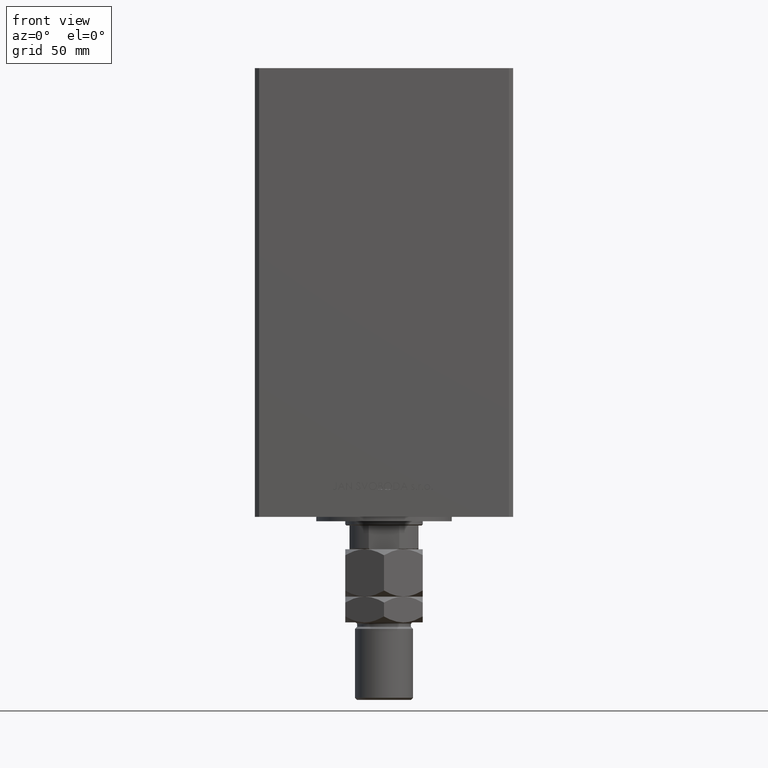
[diagram: clean part render]
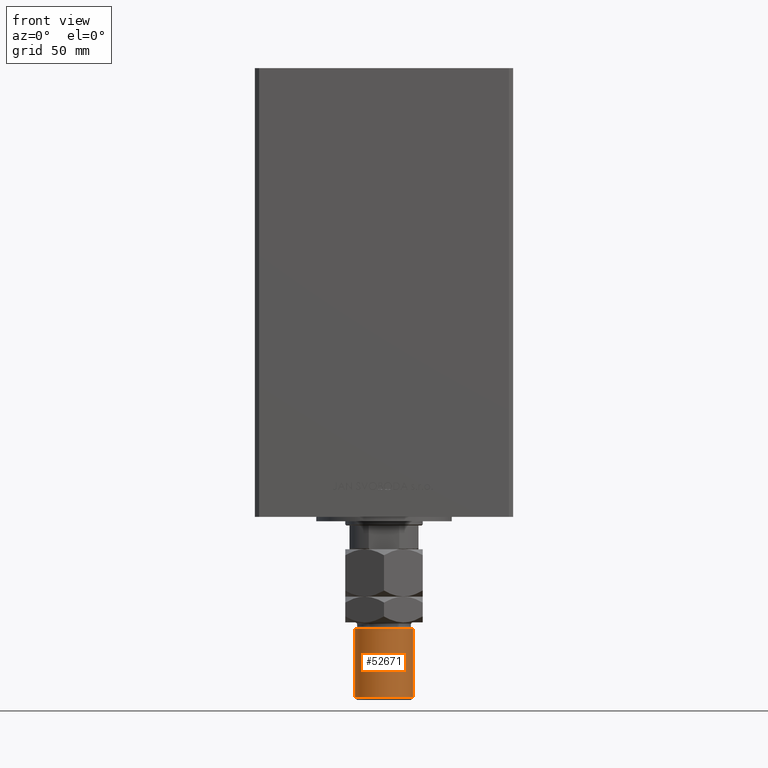
[diagram: same view with one face highlighted and labeled with its STEP entity id]
A machine part, front view. The second image highlights one B-rep face of the part: STEP entity #52671.
In plain terms, the highlighted cylindrical surface (edge-blend (fillet) strip) has radius 13.5 mm, axis along (0, -0, 1).
Its self-contained STEP definition (entity closure, byte-faithful):
#2039 = AXIS2_PLACEMENT_3D ( 'NONE', #21388, #28468, #50227 ) ;
#2381 = EDGE_CURVE ( 'NONE', #33560, #29367, #23360, .T. ) ;
#6570 = EDGE_CURVE ( 'NONE', #21444, #11635, #41244, .T. ) ;
#9335 = ORIENTED_EDGE ( 'NONE', *, *, #40471, .T. ) ;
#9793 = CARTESIAN_POINT ( 'NONE',  ( 0.000000000000000000, 0.000000000000000000, 37.00000000000000000 ) ) ;
#11608 = DIRECTION ( 'NONE',  ( -0.000000000000000000, -0.000000000000000000, -1.000000000000000000 ) ) ;
#11635 = VERTEX_POINT ( 'NONE', #26665 ) ;
#13749 = EDGE_LOOP ( 'NONE', ( #23613, #9335, #43554, #37639 ) ) ;
#19000 = CARTESIAN_POINT ( 'NONE',  ( 13.50000000000000000, 1.653273178848926867E-15, 70.00000000000000000 ) ) ;
#21388 = CARTESIAN_POINT ( 'NONE',  ( 0.000000000000000000, 0.000000000000000000, 70.00000000000000000 ) ) ;
#21444 = VERTEX_POINT ( 'NONE', #51213 ) ;
#22073 = CIRCLE ( 'NONE', #52470, 13.50000000000000000 ) ;
#23360 = LINE ( 'NONE', #19000, #30574 ) ;
#23574 = DIRECTION ( 'NONE',  ( 0.000000000000000000, 0.000000000000000000, -1.000000000000000000 ) ) ;
#23613 = ORIENTED_EDGE ( 'NONE', *, *, #2381, .F. ) ;
#24925 = CARTESIAN_POINT ( 'NONE',  ( -13.50000000000000000, 0.000000000000000000, 70.00000000000000000 ) ) ;
#26383 = DIRECTION ( 'NONE',  ( -0.000000000000000000, -0.000000000000000000, 1.000000000000000000 ) ) ;
#26665 = CARTESIAN_POINT ( 'NONE',  ( -13.50000000000000000, 0.000000000000000000, 37.00000000000000000 ) ) ;
#28468 = DIRECTION ( 'NONE',  ( -0.000000000000000000, -0.000000000000000000, -1.000000000000000000 ) ) ;
#29367 = VERTEX_POINT ( 'NONE', #32458 ) ;
#30574 = VECTOR ( 'NONE', #35339, 1000.000000000000000 ) ;
#32236 = CIRCLE ( 'NONE', #33989, 13.50000000000000000 ) ;
#32458 = CARTESIAN_POINT ( 'NONE',  ( 13.50000000000000000, 1.653273178848926867E-15, 37.00000000000000000 ) ) ;
#32830 = FACE_OUTER_BOUND ( 'NONE', #13749, .T. ) ;
#33560 = VERTEX_POINT ( 'NONE', #49191 ) ;
#33989 = AXIS2_PLACEMENT_3D ( 'NONE', #9793, #26383, #40237 ) ;
#34344 = EDGE_CURVE ( 'NONE', #11635, #29367, #32236, .T. ) ;
#35339 = DIRECTION ( 'NONE',  ( -0.000000000000000000, -0.000000000000000000, -1.000000000000000000 ) ) ;
#37639 = ORIENTED_EDGE ( 'NONE', *, *, #34344, .T. ) ;
#40237 = DIRECTION ( 'NONE',  ( 1.000000000000000000, 0.000000000000000000, 0.000000000000000000 ) ) ;
#40448 = CARTESIAN_POINT ( 'NONE',  ( 0.000000000000000000, 0.000000000000000000, 68.99999999999998579 ) ) ;
#40471 = EDGE_CURVE ( 'NONE', #33560, #21444, #22073, .T. ) ;
#41244 = LINE ( 'NONE', #24925, #47276 ) ;
#42053 = CYLINDRICAL_SURFACE ( 'NONE', #2039, 13.50000000000000000 ) ;
#43554 = ORIENTED_EDGE ( 'NONE', *, *, #6570, .T. ) ;
#44249 = DIRECTION ( 'NONE',  ( 1.000000000000000000, 0.000000000000000000, 0.000000000000000000 ) ) ;
#47276 = VECTOR ( 'NONE', #11608, 1000.000000000000000 ) ;
#49191 = CARTESIAN_POINT ( 'NONE',  ( 13.50000000000000000, 1.653273178848926867E-15, 68.99999999999998579 ) ) ;
#50227 = DIRECTION ( 'NONE',  ( -1.000000000000000000, 0.000000000000000000, 0.000000000000000000 ) ) ;
#51213 = CARTESIAN_POINT ( 'NONE',  ( -13.50000000000000000, 0.000000000000000000, 68.99999999999998579 ) ) ;
#52470 = AXIS2_PLACEMENT_3D ( 'NONE', #40448, #23574, #44249 ) ;
#52671 = ADVANCED_FACE ( 'NONE', ( #32830 ), #42053, .T. ) ;